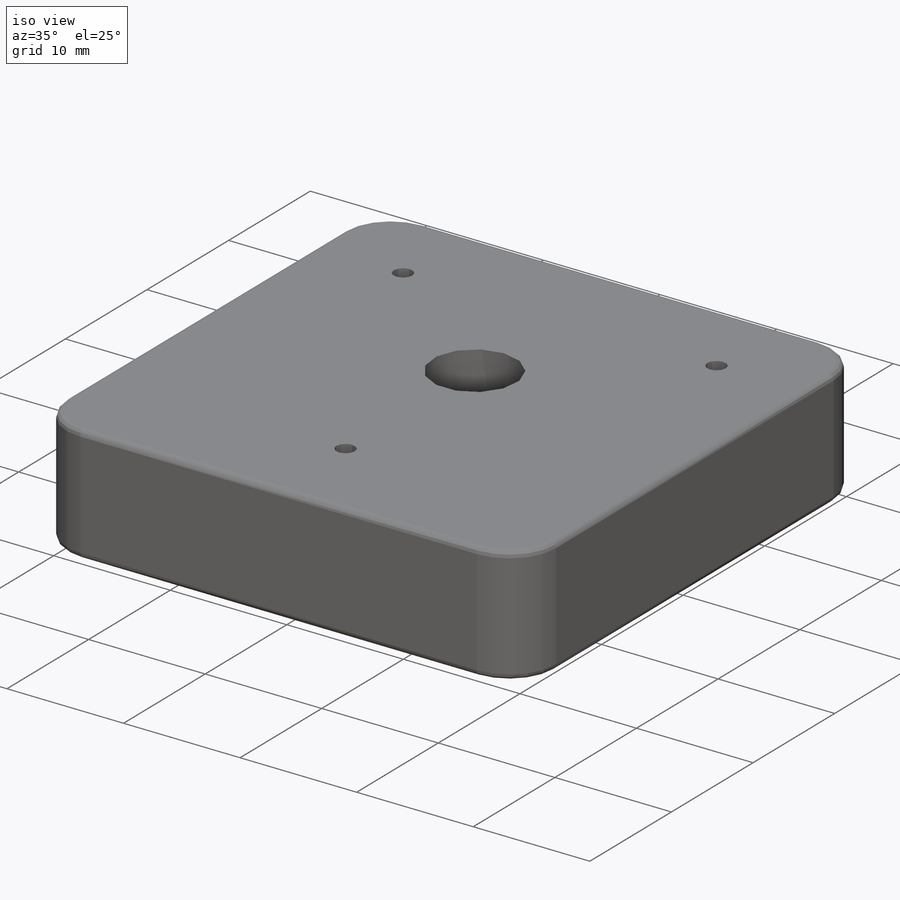
[diagram: iso view]
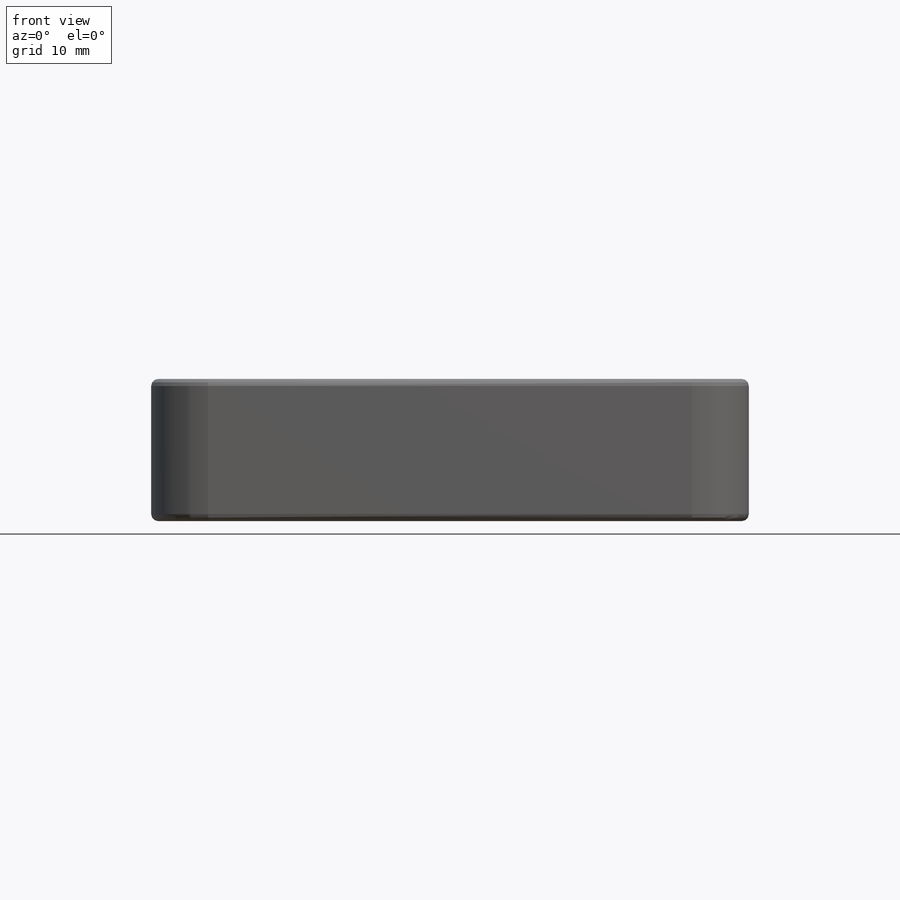
[diagram: front view]
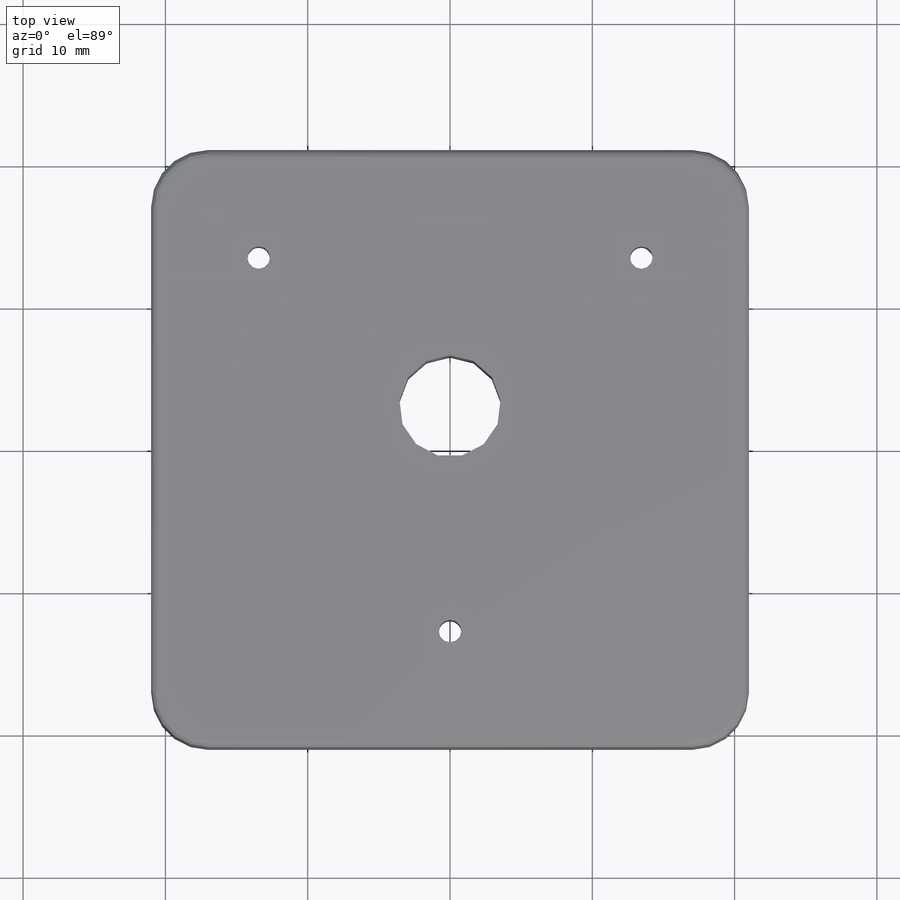
[diagram: top view]
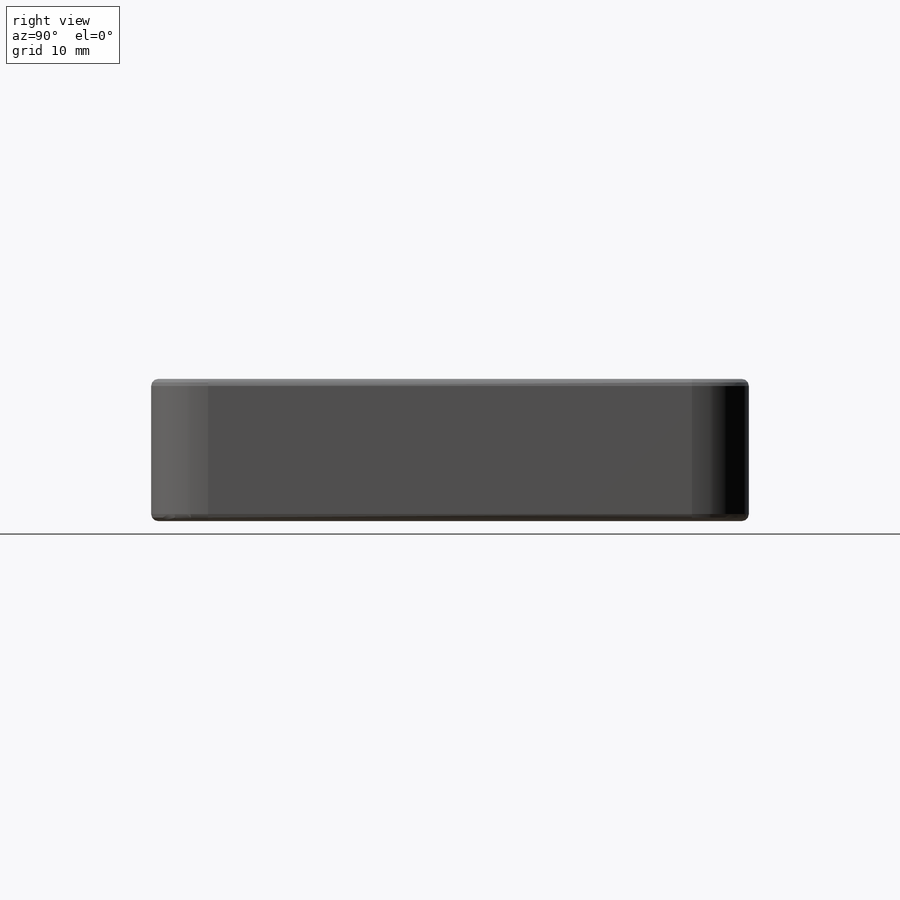
[diagram: right view]
SOLIDWORKS PART (.sldprt)
format: sldprt  version: not decoded by parser v0  size: 314,368 bytes
history: native  units: mm
features: sketch x7, fillet x3, hole x2, material x1, extrude x1, cut_extrude x1 (+15 scaffold rows collapsed)
feature tree (30):
  scaffold x15  (default folders/planes/origin — collapsed)
  material  "Material <not specified>"
  sketch  "Sketch1"  dims[D1=42.0mm]
  extrude  "Extrude1"  Depth=10mm
  sketch  "Sketch2"  dims[D2=6.3627mm D1=30.0mm D3=30.0mm D4=12.0mm]
  cut_extrude  "Extrude2"  Depth=3.1877mm
  hole  "1/4 Clearance Hole1"  Diameter=7.14248mm Depth=10mm
  sketch  "3DSketch2"
  sketch  "Sketch4"  dims[hole-wizard template sketch: 60 standard entries collapsed; hole parameters kept: c18.Thru Hole Depth=10.0mm]
  fillet  "Fillet1"  Radius=4mm
  fillet  "Fillet2"  Radius=1.5875mm
  sketch  "Sketch5"  dims[D1=2.2mm D2=2.2mm]
  hole  "1/16 (0.0625) Diameter Hole1"  Diameter=1.5875mm Depth=10mm
  sketch  "3DSketch3"
  sketch  "Sketch6"  dims[hole-wizard template sketch: 60 standard entries collapsed; hole parameters kept: c18.Thru Hole Depth=10.0mm]
  fillet  "Fillet3"  Radius=0.5mm
decode coverage: 12 of 14 modeling features carry decoded parameters
note: ~ marks probable driven/reference dimensions
note: suppression state not decoded; provenance and decode notes live in map.json
